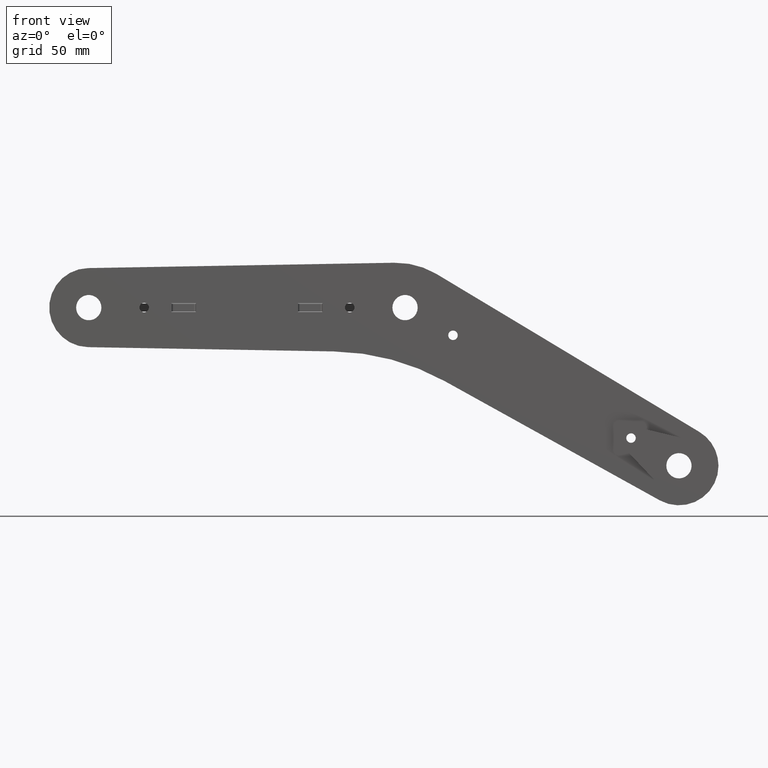
[diagram: clean part render]
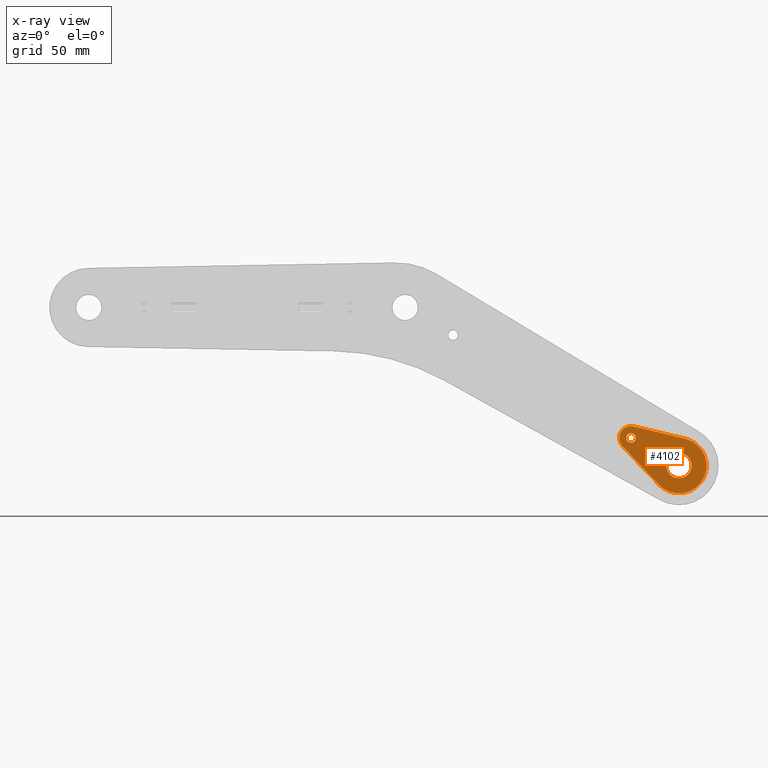
[diagram: x-ray — body ghosted, one internal face saturated and labeled with its STEP entity id]
A machine part, front view, then the same camera in x-ray: the body is ghosted and one INTERNAL B-rep face — a face not visible from any outside direction — is saturated and labeled: STEP entity #4102.
In plain terms, the highlighted planar face has unit normal (-0, 1, -0).
Its self-contained STEP definition (entity closure, byte-faithful):
#62 = DIRECTION ( 'NONE',  ( 3.451266460341922270E-31, 2.588449845256441483E-31, 1.000000000000000000 ) ) ;
#68 = CARTESIAN_POINT ( 'NONE',  ( 5.000000000000101252, 16.77050983124844308, 2.081668171172168513E-14 ) ) ;
#209 = AXIS2_PLACEMENT_3D ( 'NONE', #2382, #3088, #3761 ) ;
#216 = FACE_OUTER_BOUND ( 'NONE', #3006, .T. ) ;
#225 = VERTEX_POINT ( 'NONE', #518 ) ;
#234 = VERTEX_POINT ( 'NONE', #3526 ) ;
#261 = CARTESIAN_POINT ( 'NONE',  ( 0.000000000000000000, 0.000000000000000000, 0.000000000000000000 ) ) ;
#405 = DIRECTION ( 'NONE',  ( 3.451266460341922270E-31, 2.588449845256441483E-31, 1.000000000000000000 ) ) ;
#464 = ORIENTED_EDGE ( 'NONE', *, *, #1229, .F. ) ;
#518 = CARTESIAN_POINT ( 'NONE',  ( 38.00000000000009237, -4.776734563449736015E-14, 2.775557561562891351E-14 ) ) ;
#638 = EDGE_LOOP ( 'NONE', ( #2550, #3028 ) ) ;
#666 = AXIS2_PLACEMENT_3D ( 'NONE', #3231, #405, #2562 ) ;
#685 = DIRECTION ( 'NONE',  ( 1.000000000000000000, -8.881784197001216825E-16, 3.081487911019565104E-31 ) ) ;
#794 = ORIENTED_EDGE ( 'NONE', *, *, #4256, .F. ) ;
#795 = CIRCLE ( 'NONE', #3281, 8.000000000000031974 ) ;
#871 = EDGE_LOOP ( 'NONE', ( #464, #794 ) ) ;
#883 = PLANE ( 'NONE',  #2700 ) ;
#913 = CARTESIAN_POINT ( 'NONE',  ( 0.000000000000000000, 0.000000000000000000, 0.000000000000000000 ) ) ;
#977 = DIRECTION ( 'NONE',  ( -0.9583148474999098054, 0.2857142857142860315, -3.389636702121520213E-31 ) ) ;
#1028 = EDGE_CURVE ( 'NONE', #4166, #3881, #795, .T. ) ;
#1069 = LINE ( 'NONE', #68, #2056 ) ;
#1090 = DIRECTION ( 'NONE',  ( 0.9583148474999101385, 0.2857142857142847547, 3.748822636749744078E-31 ) ) ;
#1166 = CIRCLE ( 'NONE', #1377, 17.50000000000007105 ) ;
#1173 = CARTESIAN_POINT ( 'NONE',  ( 37.14285714285735196, -7.187361356249414968, 2.775557561562891351E-14 ) ) ;
#1177 = CARTESIAN_POINT ( 'NONE',  ( 5.000000000000004441, -16.77050983124852124, 3.469446951953614189E-14 ) ) ;
#1229 = EDGE_CURVE ( 'NONE', #225, #1589, #3000, .T. ) ;
#1290 = DIRECTION ( 'NONE',  ( 3.451266460341922270E-31, 2.588449845256441483E-31, 1.000000000000000000 ) ) ;
#1328 = CARTESIAN_POINT ( 'NONE',  ( 5.000000000000004441, -16.77050983124852124, 3.469446951953614189E-14 ) ) ;
#1377 = AXIS2_PLACEMENT_3D ( 'NONE', #3464, #62, #3194 ) ;
#1548 = FACE_BOUND ( 'NONE', #638, .T. ) ;
#1581 = CIRCLE ( 'NONE', #4219, 8.000000000000031974 ) ;
#1589 = VERTEX_POINT ( 'NONE', #3720 ) ;
#1615 = DIRECTION ( 'NONE',  ( -3.081487911019562914E-31, 2.588449845256447176E-31, 1.000000000000000000 ) ) ;
#1635 = DIRECTION ( 'NONE',  ( 1.000000000000000000, -8.881784197001219783E-16, 0.000000000000000000 ) ) ;
#1648 = ORIENTED_EDGE ( 'NONE', *, *, #3912, .T. ) ;
#1798 = CIRCLE ( 'NONE', #4073, 7.500000000000027534 ) ;
#1965 = CARTESIAN_POINT ( 'NONE',  ( 35.00000000000007105, -4.510281037539698445E-14, 2.775557561562891351E-14 ) ) ;
#1977 = CARTESIAN_POINT ( 'NONE',  ( 5.000000000000101252, 16.77050983124844308, 2.081668171172168513E-14 ) ) ;
#2050 = VERTEX_POINT ( 'NONE', #2668 ) ;
#2052 = CARTESIAN_POINT ( 'NONE',  ( 35.00000000000007105, -4.510281037539698445E-14, 2.775557561562891351E-14 ) ) ;
#2056 = VECTOR ( 'NONE', #977, 1000.000000000000114 ) ;
#2079 = AXIS2_PLACEMENT_3D ( 'NONE', #2052, #3366, #3776 ) ;
#2132 = CIRCLE ( 'NONE', #209, 3.000000000000016431 ) ;
#2198 = VECTOR ( 'NONE', #1090, 1000.000000000000114 ) ;
#2375 = DIRECTION ( 'NONE',  ( 3.451266460341922270E-31, 2.588449845256441483E-31, 1.000000000000000000 ) ) ;
#2382 = CARTESIAN_POINT ( 'NONE',  ( 35.00000000000007105, -4.510281037539698445E-14, 2.775557561562891351E-14 ) ) ;
#2550 = ORIENTED_EDGE ( 'NONE', *, *, #1028, .F. ) ;
#2562 = DIRECTION ( 'NONE',  ( 1.000000000000000000, -8.881784197001219783E-16, 0.000000000000000000 ) ) ;
#2578 = CIRCLE ( 'NONE', #666, 7.500000000000027534 ) ;
#2668 = CARTESIAN_POINT ( 'NONE',  ( 37.14285714285729512, 7.187361356249231115, 7.632783294297951215E-14 ) ) ;
#2700 = AXIS2_PLACEMENT_3D ( 'NONE', #261, #1615, #2911 ) ;
#2711 = EDGE_CURVE ( 'NONE', #3561, #3853, #1166, .T. ) ;
#2811 = VERTEX_POINT ( 'NONE', #1173 ) ;
#2871 = CARTESIAN_POINT ( 'NONE',  ( -8.000000000000000000, 4.615697844965258600E-15, 2.761013168273537115E-30 ) ) ;
#2911 = DIRECTION ( 'NONE',  ( 1.000000000000000000, -8.881784197001216825E-16, 3.081487911019565104E-31 ) ) ;
#2985 = DIRECTION ( 'NONE',  ( 1.000000000000000000, -8.881784197001216825E-16, 3.081487911019565104E-31 ) ) ;
#3000 = CIRCLE ( 'NONE', #2079, 3.000000000000016431 ) ;
#3006 = EDGE_LOOP ( 'NONE', ( #3096, #1648, #3384, #3364, #4270 ) ) ;
#3028 = ORIENTED_EDGE ( 'NONE', *, *, #3137, .F. ) ;
#3041 = CARTESIAN_POINT ( 'NONE',  ( 8.000000000000031974, -7.105427357601001859E-15, 2.465190328815661892E-30 ) ) ;
#3088 = DIRECTION ( 'NONE',  ( 3.451266460341922270E-31, 2.588449845256441483E-31, 1.000000000000000000 ) ) ;
#3096 = ORIENTED_EDGE ( 'NONE', *, *, #2711, .T. ) ;
#3137 = EDGE_CURVE ( 'NONE', #3881, #4166, #1581, .T. ) ;
#3186 = EDGE_CURVE ( 'NONE', #234, #2050, #1798, .T. ) ;
#3194 = DIRECTION ( 'NONE',  ( 1.000000000000000000, -8.881784197001215839E-16, 3.081487911019565104E-31 ) ) ;
#3231 = CARTESIAN_POINT ( 'NONE',  ( 35.00000000000007105, -4.510281037539698445E-14, 2.775557561562891351E-14 ) ) ;
#3281 = AXIS2_PLACEMENT_3D ( 'NONE', #913, #1290, #2985 ) ;
#3310 = FACE_BOUND ( 'NONE', #871, .T. ) ;
#3364 = ORIENTED_EDGE ( 'NONE', *, *, #3186, .T. ) ;
#3366 = DIRECTION ( 'NONE',  ( 3.451266460341922270E-31, 2.588449845256441483E-31, 1.000000000000000000 ) ) ;
#3384 = ORIENTED_EDGE ( 'NONE', *, *, #3487, .T. ) ;
#3464 = CARTESIAN_POINT ( 'NONE',  ( 0.000000000000000000, 0.000000000000000000, 0.000000000000000000 ) ) ;
#3487 = EDGE_CURVE ( 'NONE', #2811, #234, #2578, .T. ) ;
#3526 = CARTESIAN_POINT ( 'NONE',  ( 42.50000000000007105, -5.523359547510150002E-14, 2.775557561562884725E-14 ) ) ;
#3561 = VERTEX_POINT ( 'NONE', #1977 ) ;
#3720 = CARTESIAN_POINT ( 'NONE',  ( 32.00000000000007105, -4.554032802850601750E-14, 2.775557561562891351E-14 ) ) ;
#3737 = DIRECTION ( 'NONE',  ( 3.451266460341922270E-31, 2.588449845256441483E-31, 1.000000000000000000 ) ) ;
#3761 = DIRECTION ( 'NONE',  ( 1.000000000000000000, -8.881784197001211894E-16, 0.000000000000000000 ) ) ;
#3776 = DIRECTION ( 'NONE',  ( 1.000000000000000000, -8.881784197001211894E-16, 0.000000000000000000 ) ) ;
#3830 = EDGE_CURVE ( 'NONE', #2050, #3561, #1069, .T. ) ;
#3853 = VERTEX_POINT ( 'NONE', #1328 ) ;
#3881 = VERTEX_POINT ( 'NONE', #2871 ) ;
#3912 = EDGE_CURVE ( 'NONE', #3853, #2811, #4140, .T. ) ;
#4038 = CARTESIAN_POINT ( 'NONE',  ( 0.000000000000000000, 0.000000000000000000, 0.000000000000000000 ) ) ;
#4073 = AXIS2_PLACEMENT_3D ( 'NONE', #1965, #3737, #1635 ) ;
#4102 = ADVANCED_FACE ( 'NONE', ( #3310, #1548, #216 ), #883, .T. ) ;
#4140 = LINE ( 'NONE', #1177, #2198 ) ;
#4166 = VERTEX_POINT ( 'NONE', #3041 ) ;
#4219 = AXIS2_PLACEMENT_3D ( 'NONE', #4038, #2375, #685 ) ;
#4256 = EDGE_CURVE ( 'NONE', #1589, #225, #2132, .T. ) ;
#4270 = ORIENTED_EDGE ( 'NONE', *, *, #3830, .T. ) ;